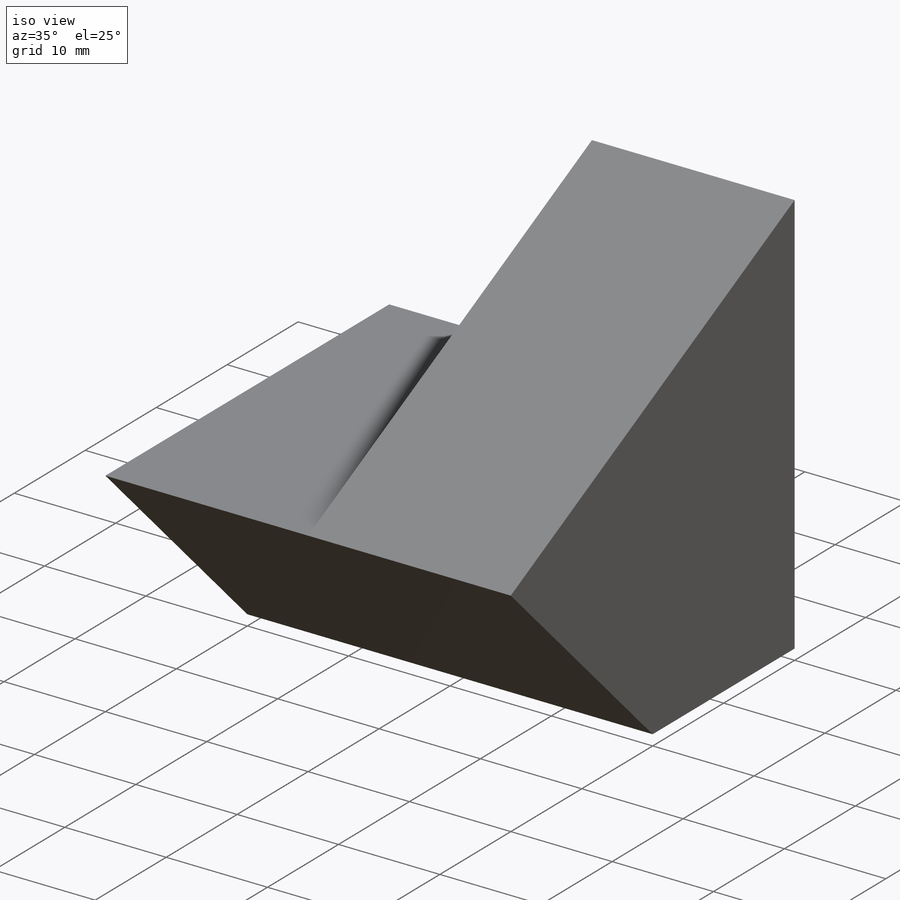
[diagram: iso view]
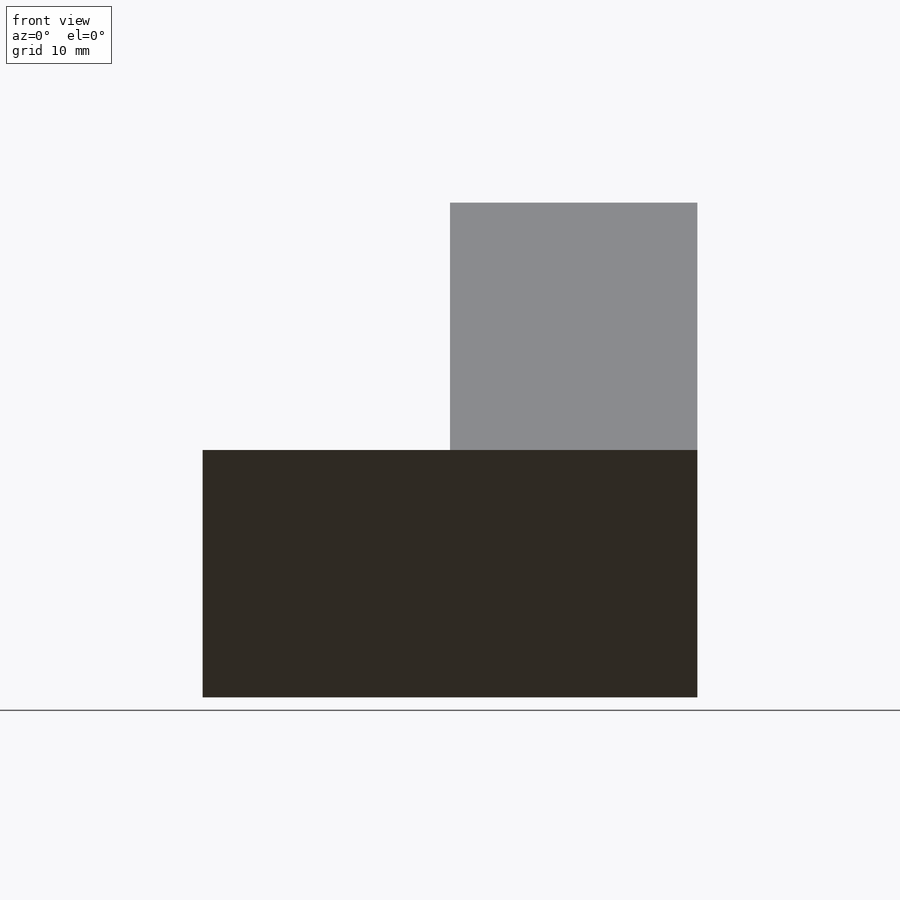
[diagram: front view]
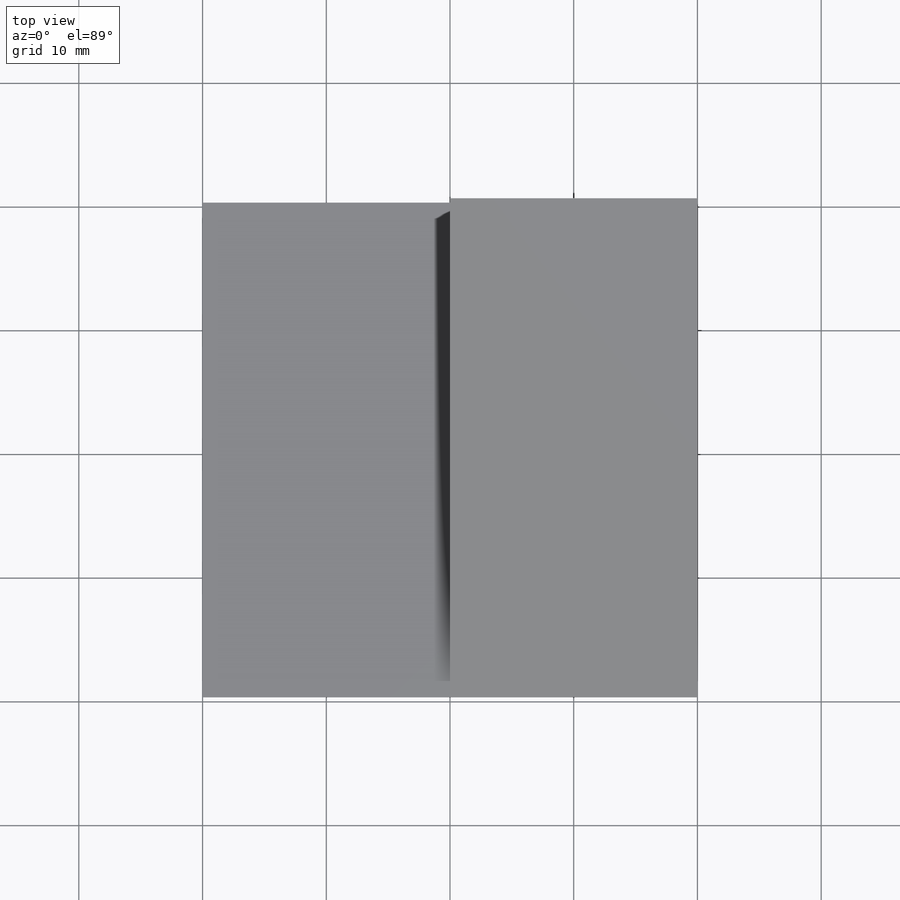
[diagram: top view]
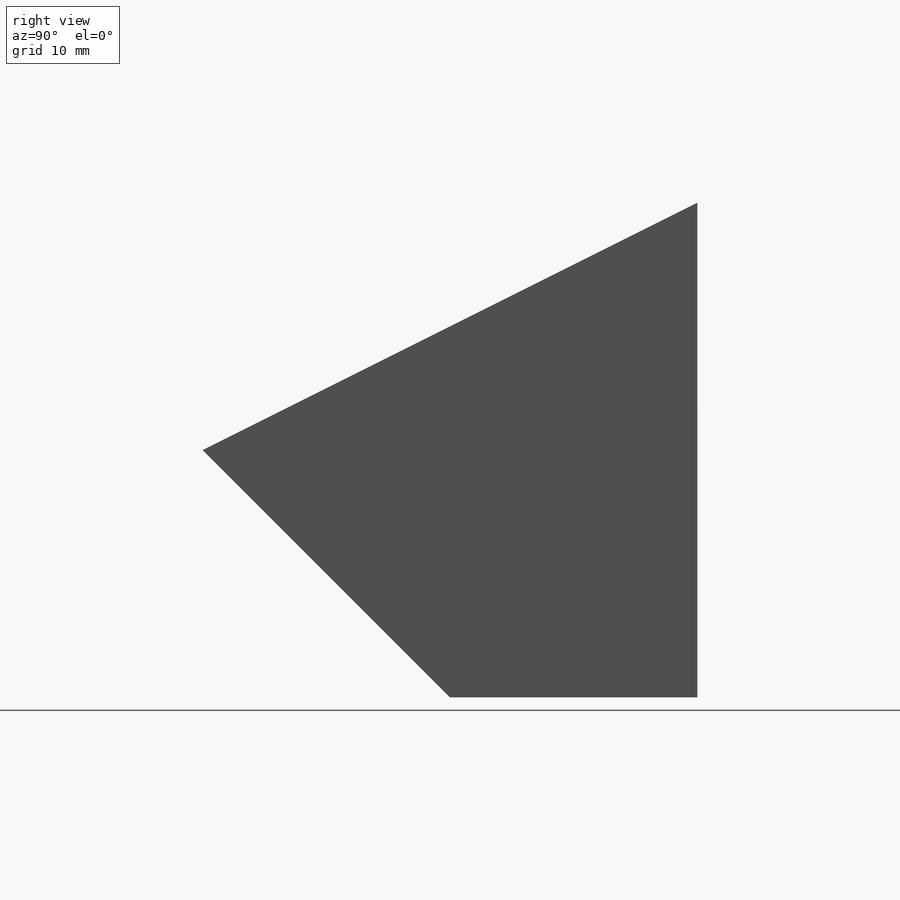
[diagram: right view]
SOLIDWORKS PART (.sldprt)
format: sldprt  version: not decoded by parser v0  size: 131,584 bytes
history: native  units: mm
features: sketch x4, cut_extrude x3, material x1, extrude x1 (+13 scaffold rows collapsed)
feature tree (22):
  scaffold x13  (default folders/planes/origin — collapsed)
  material  "Material <not specified>"
  sketch  "Sketch1"  dims[c1.D1=~41.728039mm c1.D2=~60.475418mm c2.D1=40.0mm c2.D2=40.0mm]
  extrude  "Boss-Extrude1"  Depth=40mm
  sketch  "Sketch2"  dims[c1.D1=~17.705753mm c1.D2=~17.685384mm c2.D1=20.0mm c2.D2=20.0mm]
  cut_extrude  "Cut-Extrude1"  Depth=40mm
  sketch  "Sketch3"  dims[D1=40.0mm]
  cut_extrude  "Cut-Extrude2"  Depth=40mm
  sketch  "Sketch4"  dims[D1=20.0mm]
  cut_extrude  "Cut-Extrude3"  Depth=40mm
decode coverage: 8 of 8 modeling features carry decoded parameters
note: ~ marks probable driven/reference dimensions
note: suppression state not decoded; provenance and decode notes live in map.json
